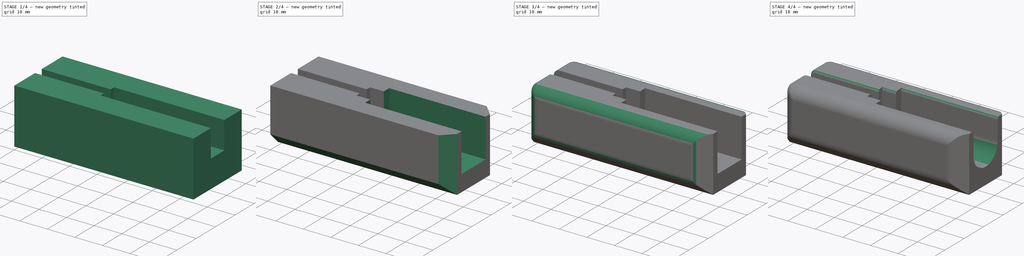
[diagram: build sequence overview — one tinted view per stage of 4, left to right]
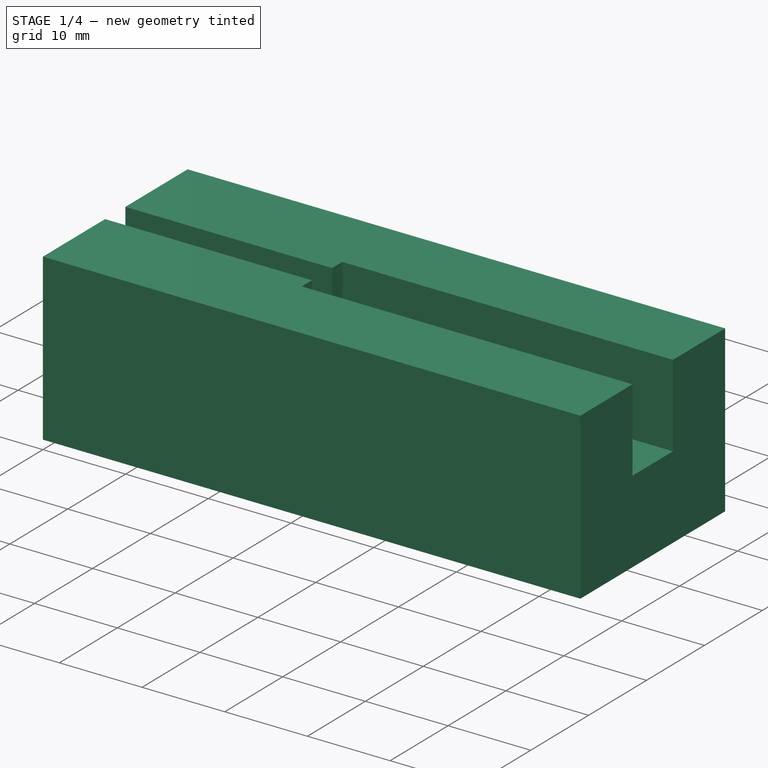
[diagram: stage 1 of 4 — iso view after this stage's code; geometry added in this stage tinted green]
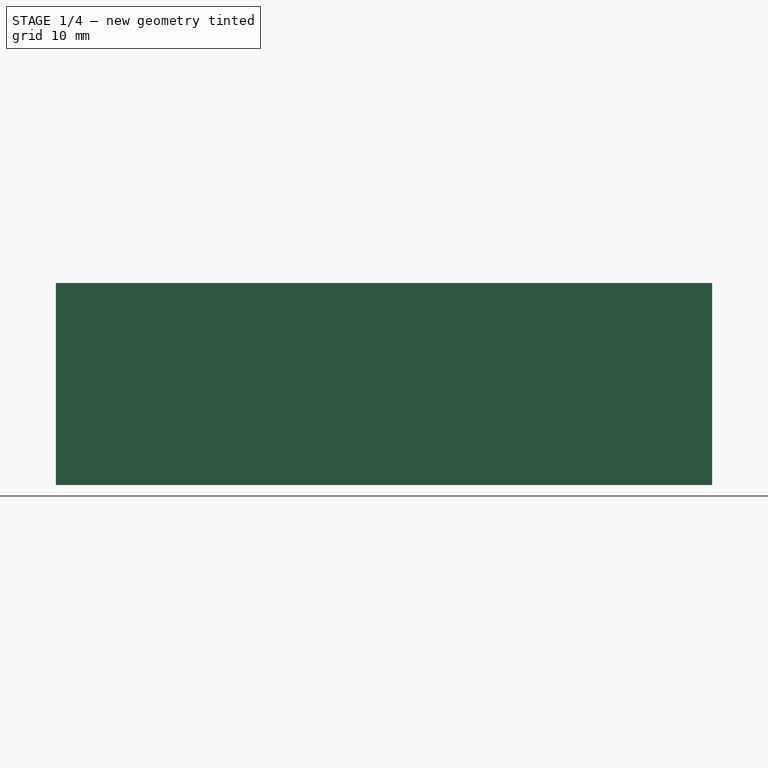
[diagram: stage 1 of 4 — front view after this stage's code; geometry added in this stage tinted green]
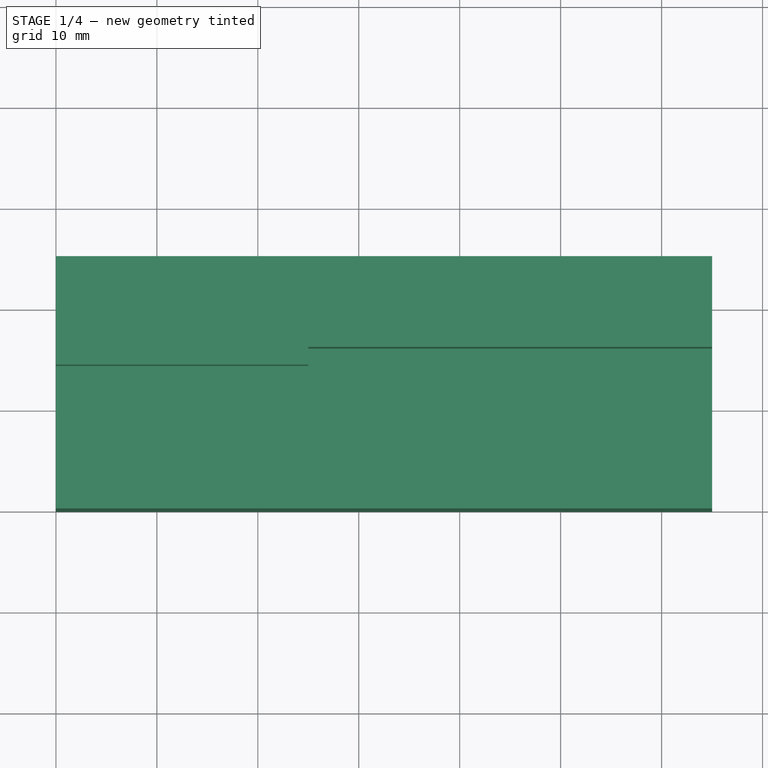
[diagram: stage 1 of 4 — top view after this stage's code; geometry added in this stage tinted green]
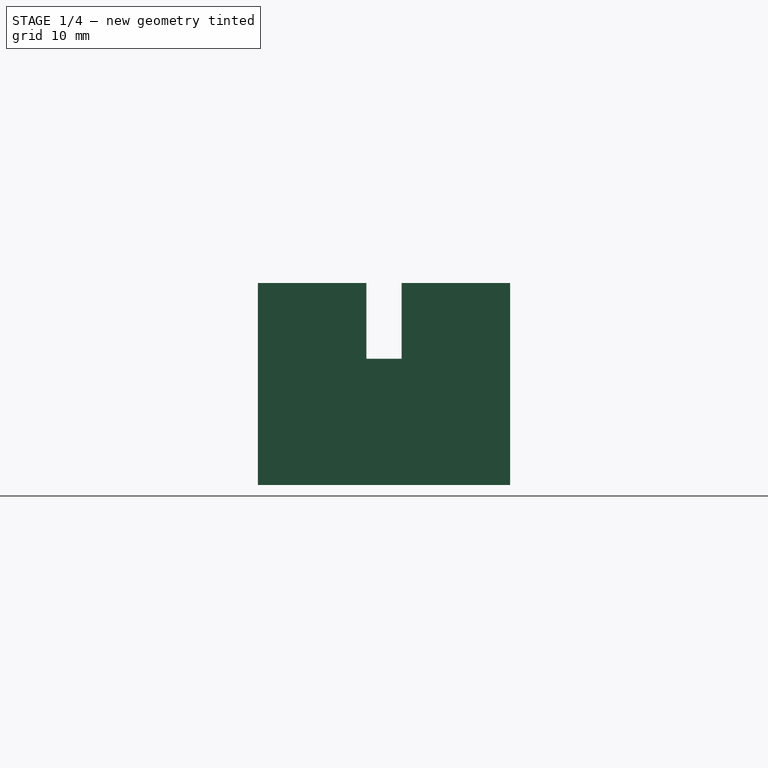
[diagram: stage 1 of 4 — right view after this stage's code; geometry added in this stage tinted green]
FCSTD DOCUMENT  (FreeCAD 0.16R5480 (Git))
Label: 35-40-65mm_motor_wire_cut_jig_v0.1
License: All rights reserved
LicenseURL: http://en.wikipedia.org/wiki/All_rights_reserved
objects: PartDesign::Fillet×6, Sketcher::SketchObject×4, PartDesign::Pocket×3, PartDesign::Chamfer×2, PartDesign::Pad×1
note: 20 computed .brp shape members not serialized (recipe doc carries the construction recipe); baked Part::Feature solids carry a one-line shape summary decoded from their .brp

FEATURE [Sketcher::SketchObject] Sketch
  sketch-geometry (4):
    g0: LineSegment StartX=0 StartY=0 StartZ=0 EndX=65 EndY=0 EndZ=0
    g1: LineSegment StartX=65 StartY=0 StartZ=0 EndX=65 EndY=25 EndZ=0
    g2: LineSegment StartX=65 StartY=25 StartZ=0 EndX=0 EndY=25 EndZ=0
    g3: LineSegment StartX=0 StartY=25 StartZ=0 EndX=0 EndY=0 EndZ=0
  constraints (11):
    c: Coincident(g0,g1)
    c: Coincident(g1,g2)
    c: Coincident(g2,g3)
    c: Coincident(g3,g0)
    c: Horizontal(g0)
    c: Horizontal(g2)
    c: Vertical(g1)
    c: Vertical(g3)
    c: Coincident(g0,g-1)
    c: DistanceX(g2) = -65
    c: DistanceY(g3) = -25
FEATURE [PartDesign::Pad] Pad
  Length = 20
  Length2 = 100
  Sketch = -> Sketch
  Type = 0
FEATURE [Sketcher::SketchObject] Sketch001
  ExternalGeometry = -> [Pad]
  Placement = pos=(0,0,20) rot=(0,0,1;0rad)
  Support = -> Pad [Face6]
  sketch-geometry (4):
    g0: LineSegment StartX=0 StartY=14.25 StartZ=0 EndX=65 EndY=14.25 EndZ=0
    g1: LineSegment StartX=65 StartY=14.25 StartZ=0 EndX=65 EndY=10.75 EndZ=0
    g2: LineSegment StartX=65 StartY=10.75 StartZ=0 EndX=0 EndY=10.75 EndZ=0
    g3: LineSegment StartX=0 StartY=10.75 StartZ=0 EndX=0 EndY=14.25 EndZ=0
  constraints (12):
    c: Coincident(g0,g1)
    c: Coincident(g1,g2)
    c: Coincident(g2,g3)
    c: Coincident(g3,g0)
    c: Horizontal(g0)
    c: Horizontal(g2)
    c: Vertical(g1)
    c: Vertical(g3)
    c: PointOnObject(g0,g-2)
    c: PointOnObject(g0,g-3)
    c: DistanceY(g3) = 3.5
    c: DistanceY(g-1,g2) = 10.75
FEATURE [PartDesign::Pocket] Pocket
  Length = 7.5
  Sketch = -> Sketch001
  Type = 0
FEATURE [Sketcher::SketchObject] Sketch002
  ExternalGeometry = -> [Pocket]
  Placement = pos=(0,0,20) rot=(0,0,1;0rad)
  Support = -> Pocket [Face9]
  sketch-geometry (4):
    g0: LineSegment StartX=65 StartY=16 StartZ=0 EndX=25 EndY=16 EndZ=0
    g1: LineSegment StartX=25 StartY=16 StartZ=0 EndX=25 EndY=9 EndZ=0
    g2: LineSegment StartX=25 StartY=9 StartZ=0 EndX=65 EndY=9 EndZ=0
    g3: LineSegment StartX=65 StartY=9 StartZ=0 EndX=65 EndY=16 EndZ=0
  constraints (12):
    c: Coincident(g0,g1)
    c: Coincident(g1,g2)
    c: Coincident(g2,g3)
    c: Coincident(g3,g0)
    c: Horizontal(g0)
    c: Horizontal(g2)
    c: Vertical(g1)
    c: Vertical(g3)
    c: PointOnObject(g0,g-3)
    c: DistanceY(g2,g0) = 7
    c: DistanceY(g-4,g2) = 9
    c: DistanceX(g0) = -40
FEATURE [PartDesign::Pocket] Pocket001
  Length = 10
  Sketch = -> Sketch002
  Type = 0
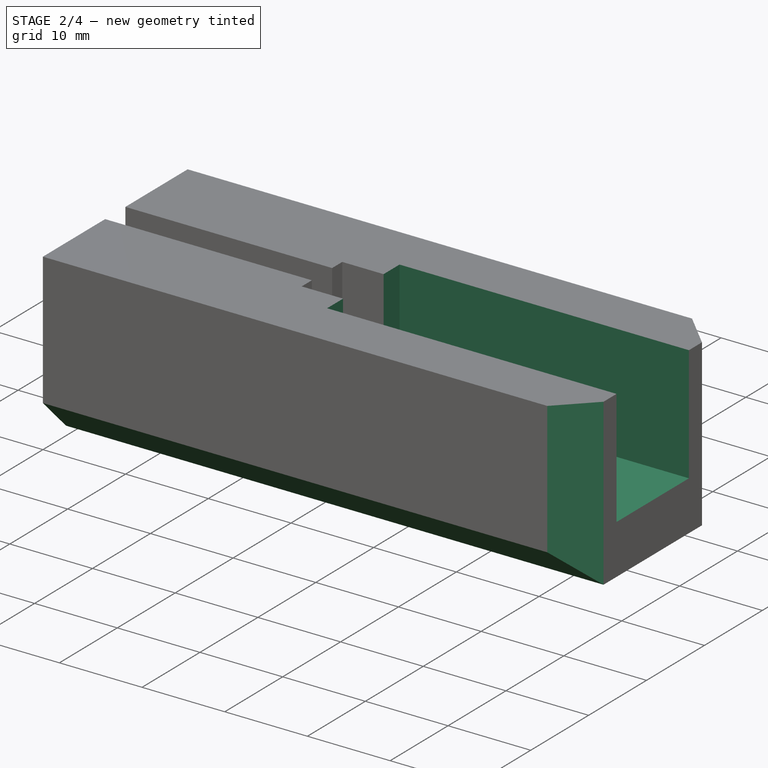
[diagram: stage 2 of 4 — iso view after this stage's code; geometry added in this stage tinted green]
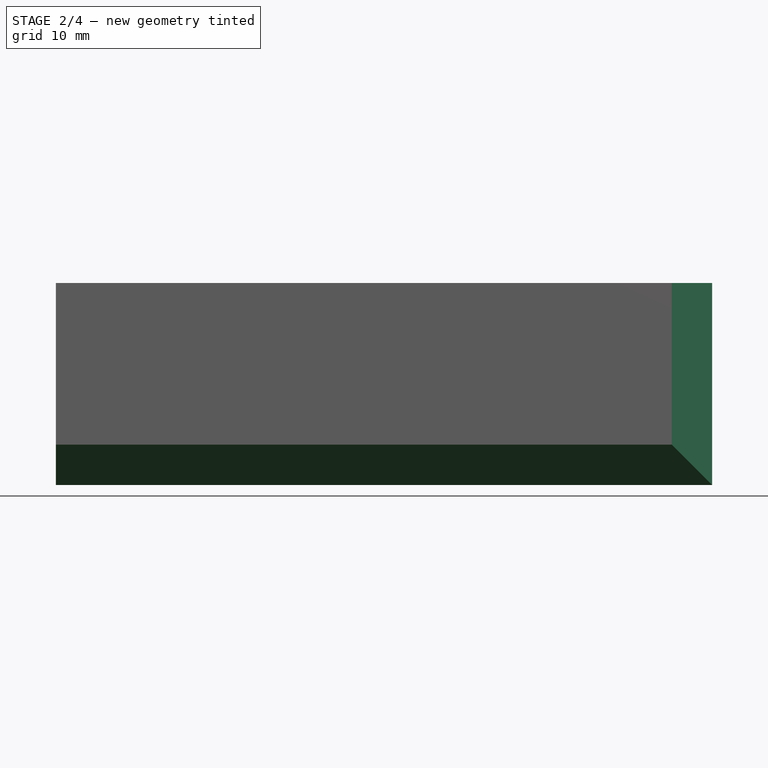
[diagram: stage 2 of 4 — front view after this stage's code; geometry added in this stage tinted green]
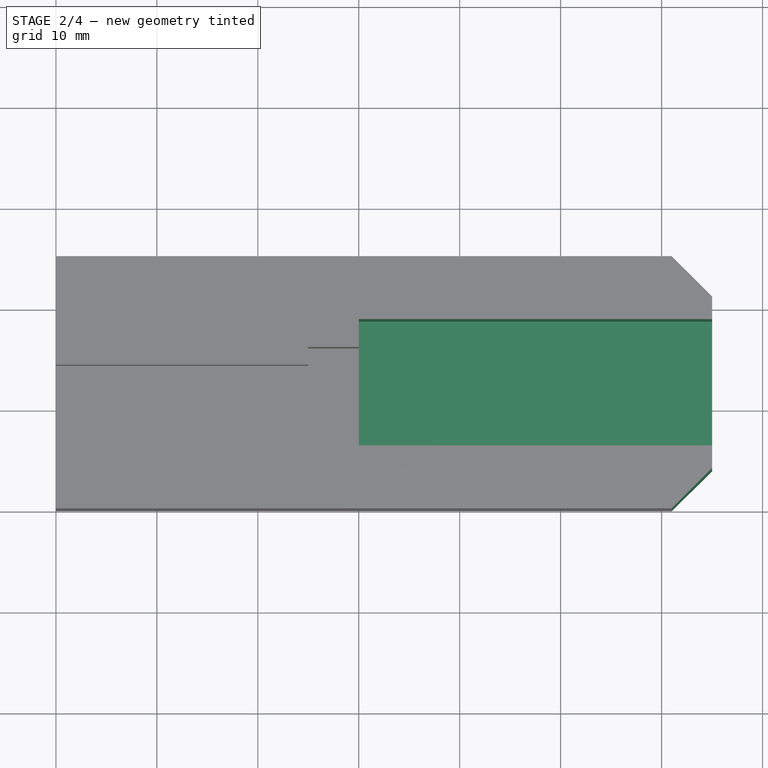
[diagram: stage 2 of 4 — top view after this stage's code; geometry added in this stage tinted green]
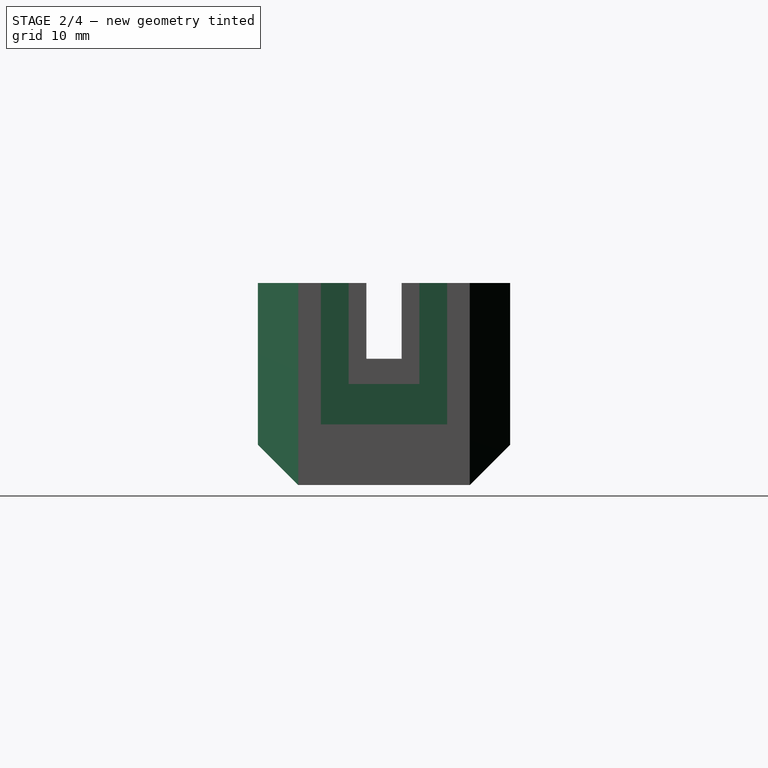
[diagram: stage 2 of 4 — right view after this stage's code; geometry added in this stage tinted green]
FEATURE [Sketcher::SketchObject] Sketch003
  ExternalGeometry = -> [Pocket001]
  Placement = pos=(0,0,20) rot=(0,0,1;0rad)
  Support = -> Pocket001 [Face9]
  sketch-geometry (4):
    g0: LineSegment StartX=65 StartY=18.75 StartZ=0 EndX=30 EndY=18.75 EndZ=0
    g1: LineSegment StartX=30 StartY=18.75 StartZ=0 EndX=30 EndY=6.25 EndZ=0
    g2: LineSegment StartX=30 StartY=6.25 StartZ=0 EndX=65 EndY=6.25 EndZ=0
    g3: LineSegment StartX=65 StartY=6.25 StartZ=0 EndX=65 EndY=18.75 EndZ=0
  constraints (12):
    c: Coincident(g0,g1)
    c: Coincident(g1,g2)
    c: Coincident(g2,g3)
    c: Coincident(g3,g0)
    c: Horizontal(g0)
    c: Horizontal(g2)
    c: Vertical(g1)
    c: Vertical(g3)
    c: PointOnObject(g0,g-3)
    c: DistanceX(g0) = -35
    c: DistanceY(g0,g2) = -12.5
    c: DistanceY(g2,g-4) = -6.25
FEATURE [PartDesign::Pocket] Pocket002
  Length = 14
  Sketch = -> Sketch003
  Type = 0
FEATURE [PartDesign::Chamfer] Chamfer
  Base = -> Pocket002 [Edge13,Edge2]
  Size = 4
FEATURE [PartDesign::Chamfer] Chamfer001
  Base = -> Chamfer [Edge1,Edge8]
  Size = 4
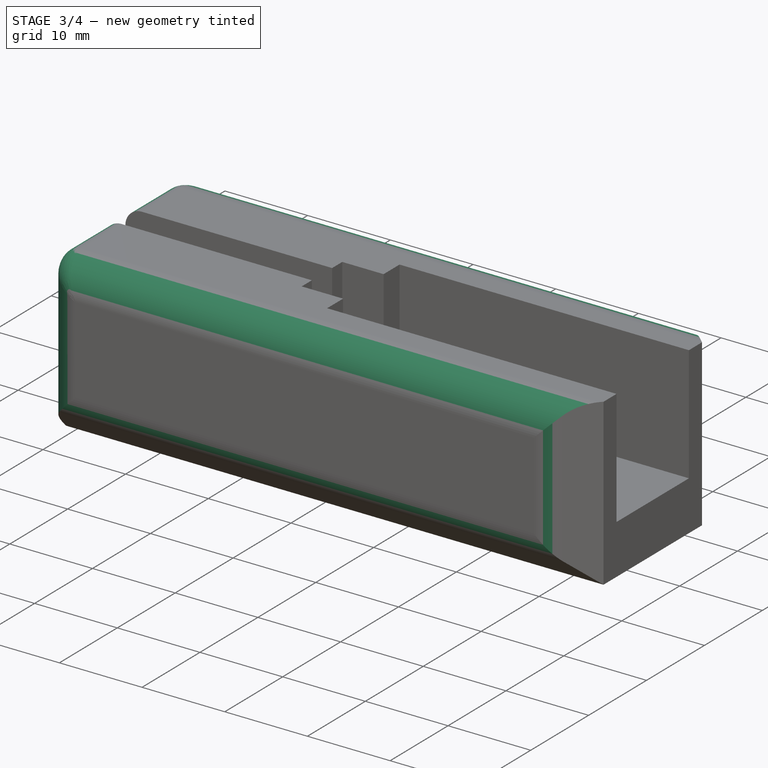
[diagram: stage 3 of 4 — iso view after this stage's code; geometry added in this stage tinted green]
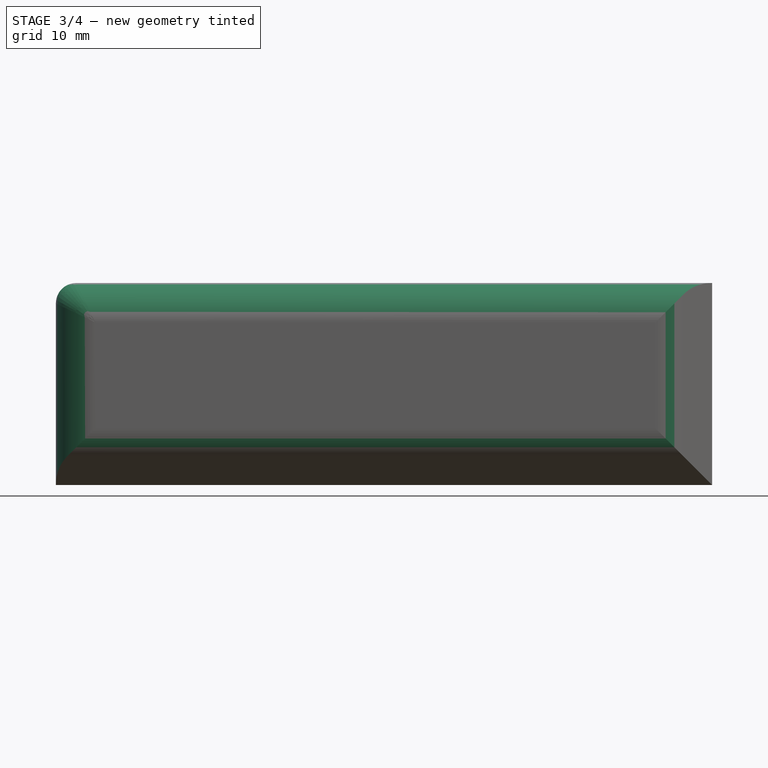
[diagram: stage 3 of 4 — front view after this stage's code; geometry added in this stage tinted green]
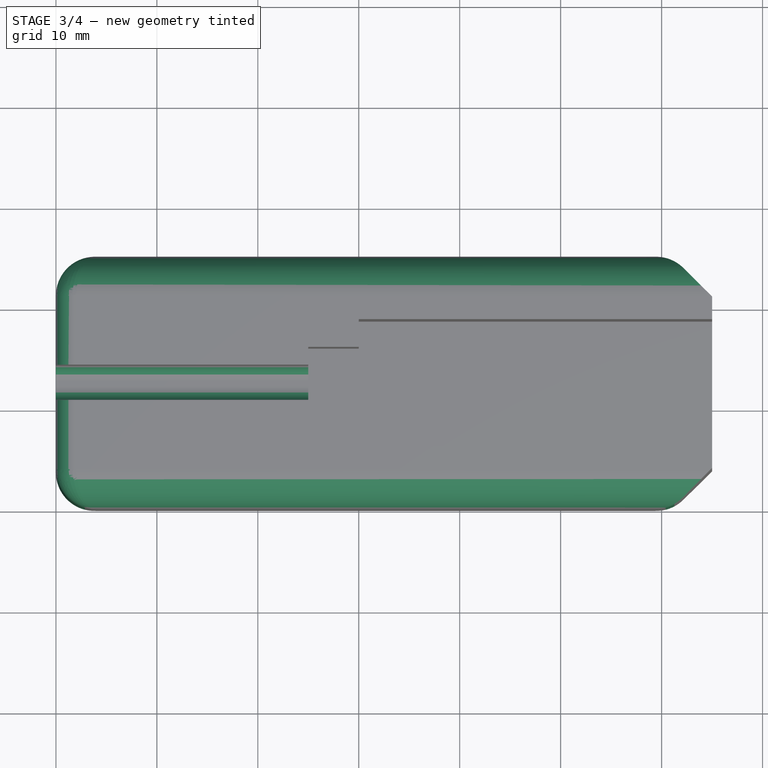
[diagram: stage 3 of 4 — top view after this stage's code; geometry added in this stage tinted green]
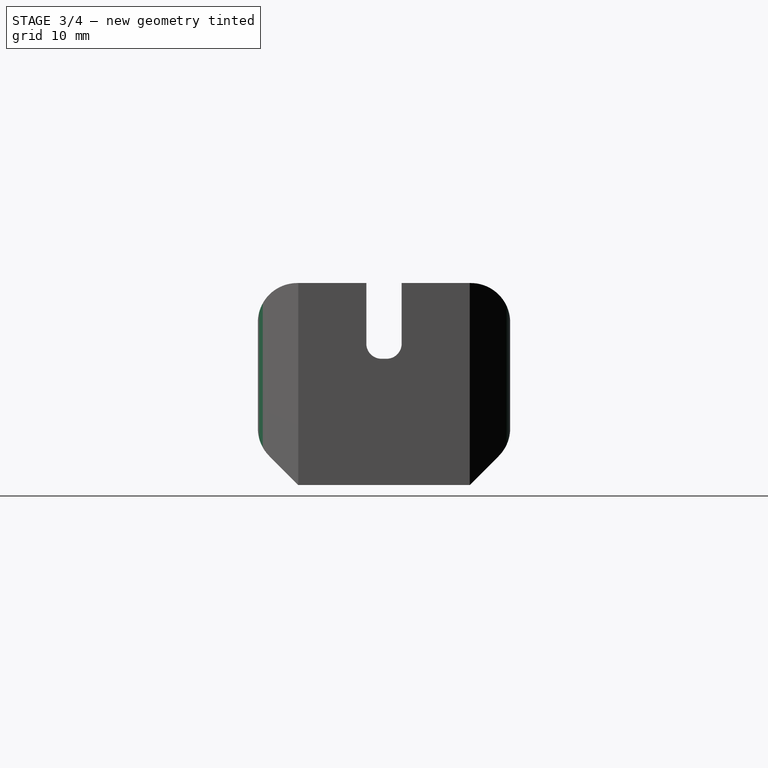
[diagram: stage 3 of 4 — right view after this stage's code; geometry added in this stage tinted green]
FEATURE [PartDesign::Fillet] Fillet
  Base = -> Chamfer001 [Edge1,Edge2,Edge3,Edge4,Edge50,Edge49,Edge51,Edge19]
  Radius = 3.9
FEATURE [PartDesign::Fillet] Fillet001
  Base = -> Fillet [Edge21,Edge30]
  Radius = 2
FEATURE [PartDesign::Fillet] Fillet002
  Base = -> Fillet001 [Edge62,Edge28]
  Radius = 1.5
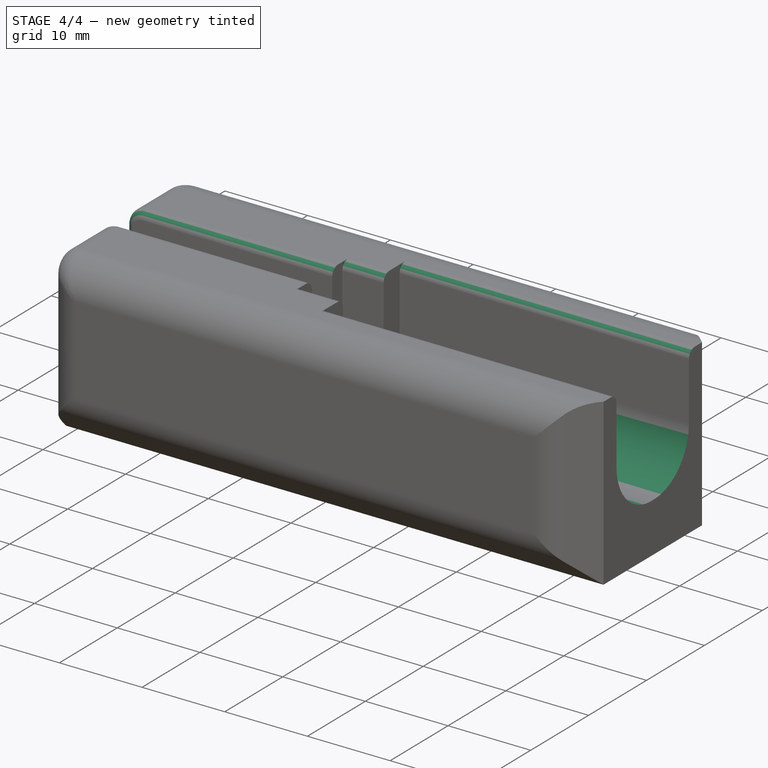
[diagram: stage 4 of 4 — iso view after this stage's code; geometry added in this stage tinted green]
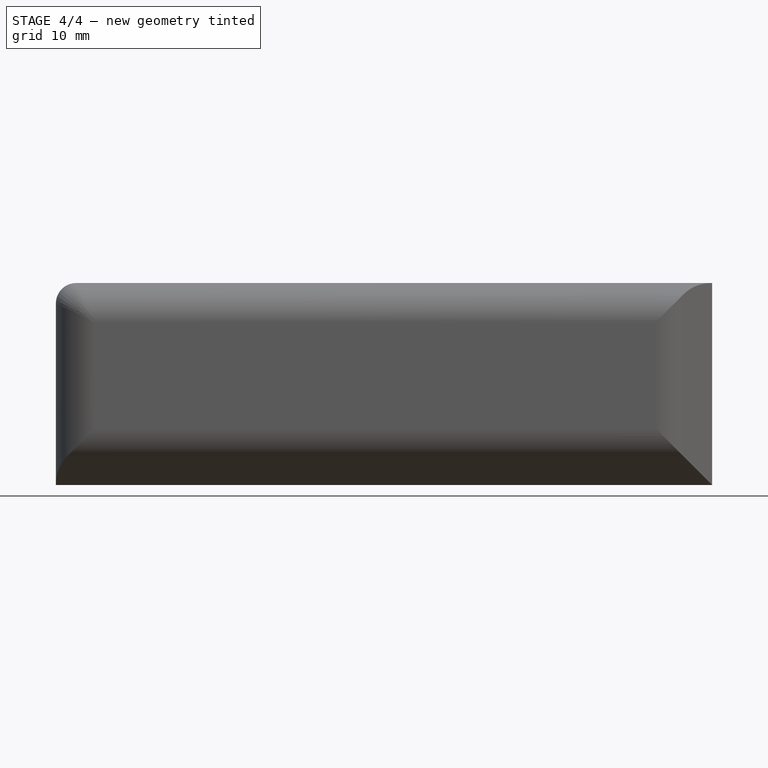
[diagram: stage 4 of 4 — front view after this stage's code; geometry added in this stage tinted green]
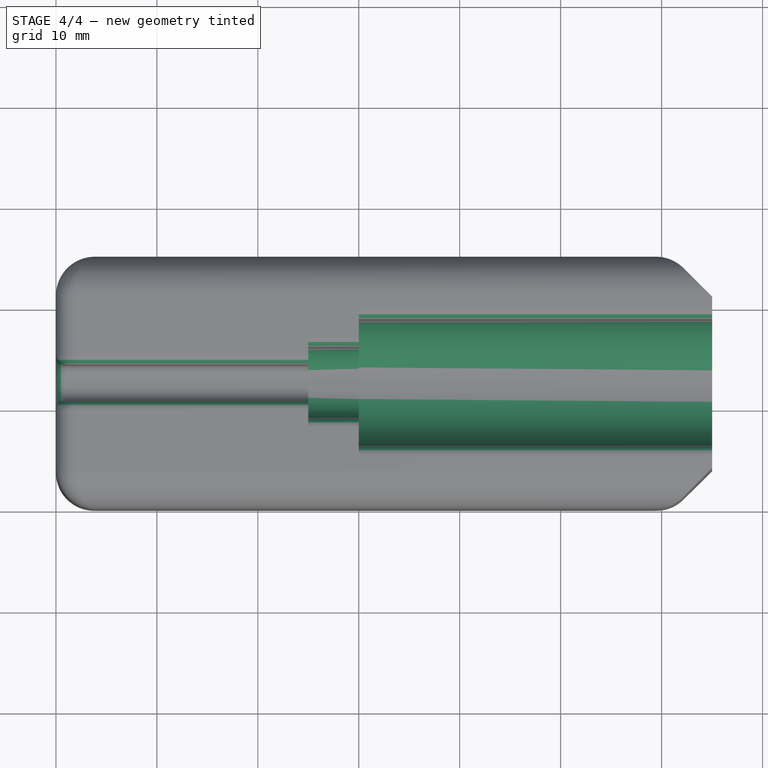
[diagram: stage 4 of 4 — top view after this stage's code; geometry added in this stage tinted green]
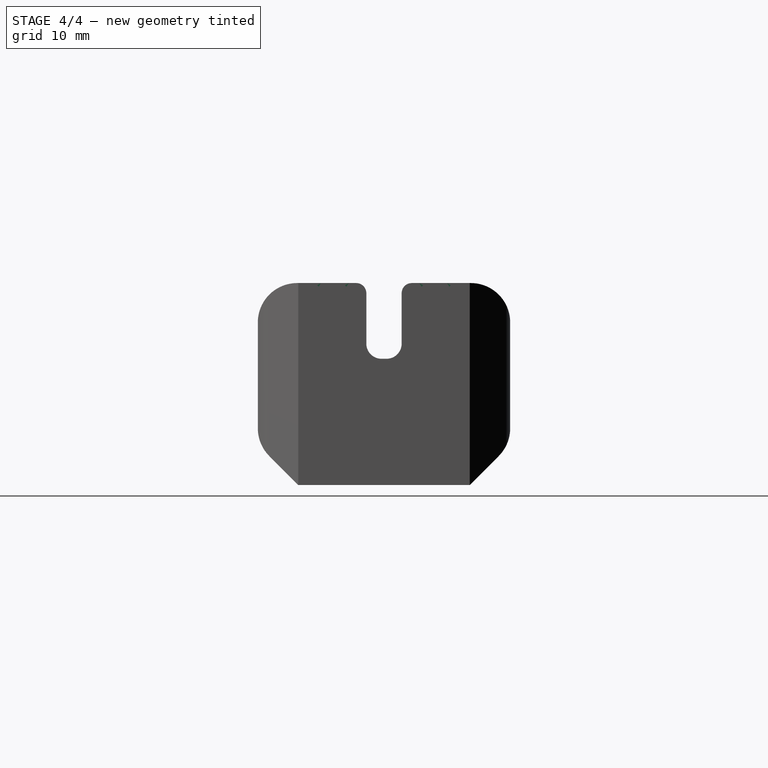
[diagram: stage 4 of 4 — right view after this stage's code; geometry added in this stage tinted green]
FEATURE [PartDesign::Fillet] Fillet003
  Base = -> Fillet002 [Edge48,Edge46]
  Radius = 3
FEATURE [PartDesign::Fillet] Fillet004
  Base = -> Fillet003 [Edge66,Edge80]
  Radius = 6
FEATURE [PartDesign::Fillet] Fillet005
  Base = -> Fillet004 [Edge21,Edge40,Edge24,Edge43,Edge15,Edge33]
  Radius = 1
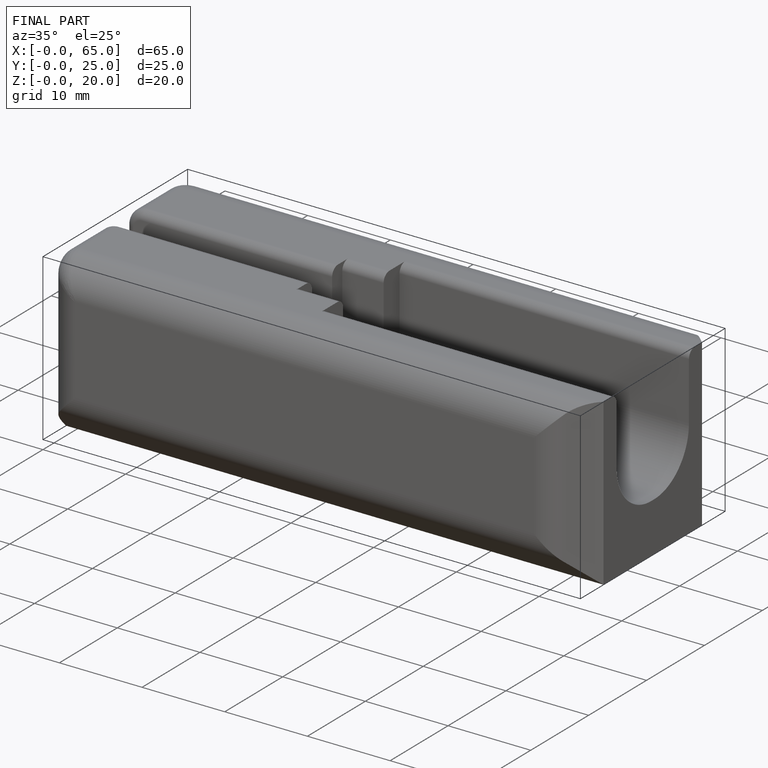
[diagram: finished part — iso view with bounding-box wireframe]
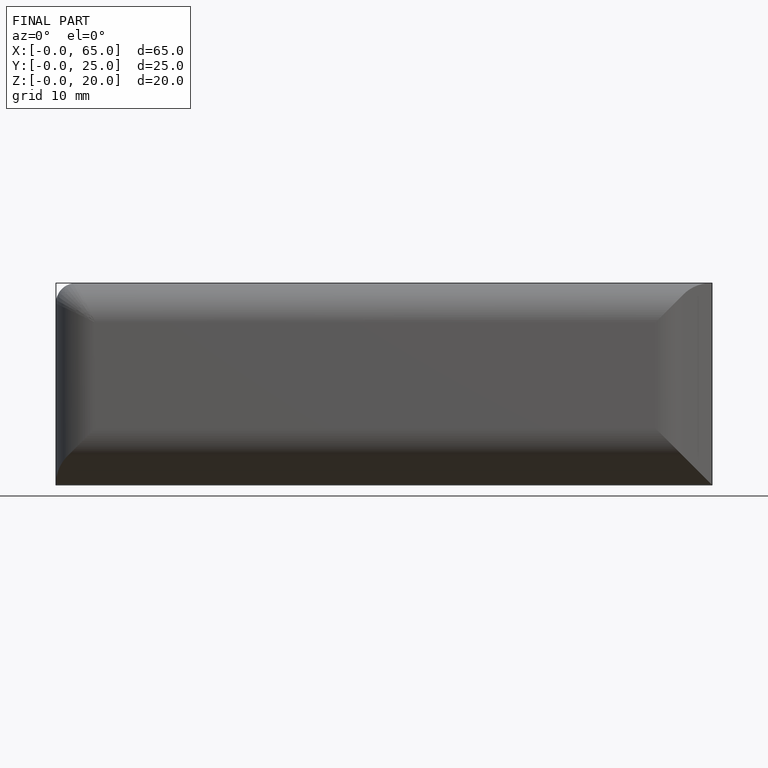
[diagram: finished part — front view with bounding-box wireframe]
